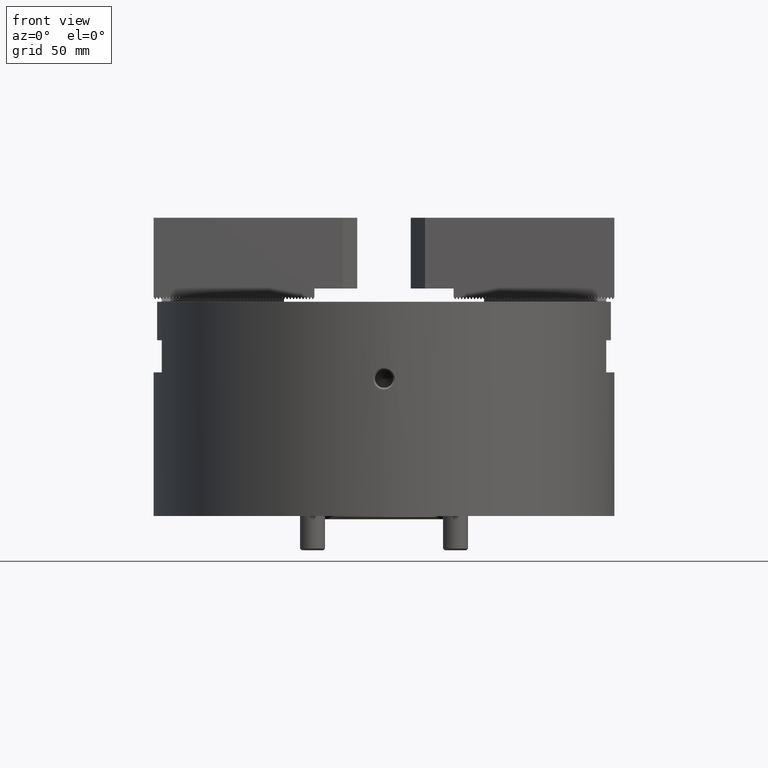
[diagram: clean part render]
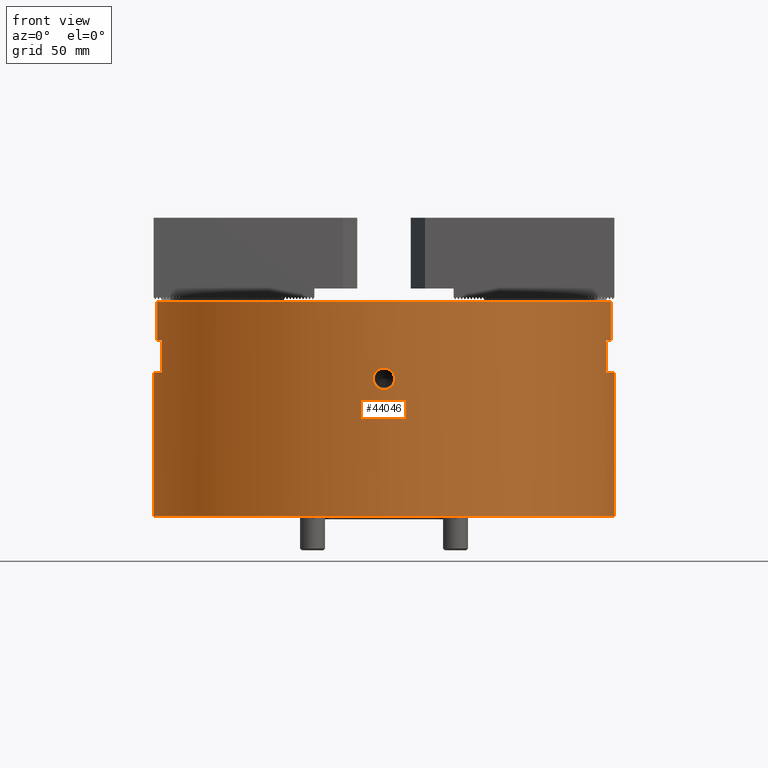
[diagram: same view with one face highlighted and labeled with its STEP entity id]
A machine part, front view. The second image highlights one B-rep face of the part: STEP entity #44046.
In plain terms, the highlighted cylindrical surface (bore or boss wall) has radius 107.5 mm, axis along (-0, 0, 1).
Its self-contained STEP definition (entity closure, byte-faithful):
#662=B_SPLINE_CURVE_WITH_KNOTS('',3,(#64453,#64454,#64455,#64456,#64457,
#64458,#64459,#64460,#64461,#64462,#64463,#64464,#64465,#64466,#64467,#64468,
#64469,#64470,#64471,#64472,#64473,#64474,#64475,#64476,#64477,#64478,#64479,
#64480,#64481,#64482,#64483,#64484,#64485,#64486,#64487),.UNSPECIFIED.,
 .T.,.F.,(1,1,1,1,1,1,1,1,1,1,1,1,1,1,1,1,1,1,1,1,1,1,1,1,1,1,1,1,1,1,1,
1,1,1,1,1,1,1,1),(-0.0953947368421053,-0.0641447368421053,-0.0328947368421053,
0.,0.0296875,0.060859375,0.09210546875,0.1233552734375,0.154605263671875,
0.185855263183594,0.21710526315918,0.248355263157959,0.279605263157898,
0.310855263157895,0.342105263157895,0.373355263157895,0.404605263157895,
0.435855263157895,0.467105263157895,0.498355263157895,0.529605263157895,
0.560855263157895,0.592105263157895,0.623355263157895,0.654605263157895,
0.685855263157895,0.717105263157895,0.748355263157895,0.779605263157895,
0.810855263157895,0.842105263157895,0.873355263157895,0.904605263157895,
0.935855263157895,0.967105263157895,1.,1.0296875,1.060859375,1.09210546875),
 .UNSPECIFIED.);
#664=B_SPLINE_CURVE_WITH_KNOTS('',3,(#64607,#64608,#64609,#64610,#64611,
#64612,#64613,#64614,#64615,#64616,#64617,#64618,#64619,#64620,#64621,#64622,
#64623,#64624,#64625,#64626,#64627,#64628,#64629,#64630,#64631,#64632,#64633,
#64634,#64635,#64636,#64637,#64638,#64639,#64640,#64641),.UNSPECIFIED.,
 .T.,.F.,(1,1,1,1,1,1,1,1,1,1,1,1,1,1,1,1,1,1,1,1,1,1,1,1,1,1,1,1,1,1,1,
1,1,1,1,1,1,1,1),(-0.0953947368421053,-0.0641447368421053,-0.0328947368421053,
0.,0.0296875,0.060859375,0.09210546875,0.1233552734375,0.154605263671875,
0.185855263183594,0.21710526315918,0.248355263157959,0.279605263157898,
0.310855263157895,0.342105263157895,0.373355263157895,0.404605263157895,
0.435855263157895,0.467105263157895,0.498355263157895,0.529605263157895,
0.560855263157895,0.592105263157895,0.623355263157895,0.654605263157895,
0.685855263157895,0.717105263157895,0.748355263157895,0.779605263157895,
0.810855263157895,0.842105263157895,0.873355263157895,0.904605263157895,
0.935855263157895,0.967105263157895,1.,1.0296875,1.060859375,1.09210546875),
 .UNSPECIFIED.);
#696=CYLINDRICAL_SURFACE('',#46227,107.5);
#1143=CIRCLE('',#45985,107.5);
#1144=CIRCLE('',#45987,107.5);
#1147=CIRCLE('',#45992,107.5);
#1149=CIRCLE('',#45998,107.5);
#1200=CIRCLE('',#46199,107.5);
#1201=CIRCLE('',#46202,107.5);
#1204=CIRCLE('',#46208,107.5);
#1214=CIRCLE('',#46226,107.5);
#1215=CIRCLE('',#46228,107.5);
#2913=ORIENTED_EDGE('',*,*,#15428,.F.);
#2914=ORIENTED_EDGE('',*,*,#15466,.F.);
#2915=ORIENTED_EDGE('',*,*,#16034,.F.);
#2916=ORIENTED_EDGE('',*,*,#15492,.F.);
#2917=ORIENTED_EDGE('',*,*,#15487,.F.);
#2918=ORIENTED_EDGE('',*,*,#15477,.F.);
#2919=ORIENTED_EDGE('',*,*,#15422,.F.);
#2920=ORIENTED_EDGE('',*,*,#16053,.F.);
#2921=ORIENTED_EDGE('',*,*,#16031,.F.);
#2922=ORIENTED_EDGE('',*,*,#16022,.F.);
#2923=ORIENTED_EDGE('',*,*,#16019,.F.);
#2924=ORIENTED_EDGE('',*,*,#16016,.F.);
#2925=ORIENTED_EDGE('',*,*,#15434,.F.);
#2926=ORIENTED_EDGE('',*,*,#15460,.F.);
#2927=ORIENTED_EDGE('',*,*,#15452,.F.);
#2928=ORIENTED_EDGE('',*,*,#16051,.F.);
#2929=ORIENTED_EDGE('',*,*,#16036,.T.);
#2930=ORIENTED_EDGE('',*,*,#15984,.T.);
#2931=ORIENTED_EDGE('',*,*,#15981,.T.);
#15422=EDGE_CURVE('',#22182,#22183,#26455,.T.);
#15428=EDGE_CURVE('',#22188,#22189,#26461,.T.);
#15434=EDGE_CURVE('',#22194,#22192,#26467,.T.);
#15452=EDGE_CURVE('',#22210,#22211,#26484,.T.);
#15460=EDGE_CURVE('',#22211,#22194,#1143,.T.);
#15466=EDGE_CURVE('',#22221,#22188,#1144,.T.);
#15477=EDGE_CURVE('',#22183,#22230,#1147,.T.);
#15487=EDGE_CURVE('',#22230,#22236,#26513,.T.);
#15492=EDGE_CURVE('',#22236,#22240,#1149,.T.);
#15981=EDGE_CURVE('',#22582,#22582,#662,.T.);
#15984=EDGE_CURVE('',#22586,#22586,#664,.T.);
#16016=EDGE_CURVE('',#22192,#22622,#1200,.T.);
#16019=EDGE_CURVE('',#22622,#22624,#26865,.T.);
#16022=EDGE_CURVE('',#22624,#22626,#1201,.T.);
#16031=EDGE_CURVE('',#22626,#22633,#26875,.T.);
#16034=EDGE_CURVE('',#22240,#22221,#26878,.T.);
#16036=EDGE_CURVE('',#22635,#22635,#1204,.T.);
#16051=EDGE_CURVE('',#22189,#22210,#1214,.T.);
#16053=EDGE_CURVE('',#22633,#22182,#1215,.T.);
#22182=VERTEX_POINT('',#61032);
#22183=VERTEX_POINT('',#61034);
#22188=VERTEX_POINT('',#61045);
#22189=VERTEX_POINT('',#61047);
#22192=VERTEX_POINT('',#61054);
#22194=VERTEX_POINT('',#61058);
#22210=VERTEX_POINT('',#61096);
#22211=VERTEX_POINT('',#61098);
#22221=VERTEX_POINT('',#61123);
#22230=VERTEX_POINT('',#61146);
#22236=VERTEX_POINT('',#61162);
#22240=VERTEX_POINT('',#61175);
#22582=VERTEX_POINT('',#64488);
#22586=VERTEX_POINT('',#64642);
#22622=VERTEX_POINT('',#64806);
#22624=VERTEX_POINT('',#64812);
#22626=VERTEX_POINT('',#64818);
#22633=VERTEX_POINT('',#64835);
#22635=VERTEX_POINT('',#64844);
#26455=LINE('',#61033,#31988);
#26461=LINE('',#61046,#31994);
#26467=LINE('',#61059,#32000);
#26484=LINE('',#61097,#32017);
#26513=LINE('',#61165,#32046);
#26865=LINE('',#64811,#32398);
#26875=LINE('',#64834,#32408);
#26878=LINE('',#64839,#32411);
#31988=VECTOR('',#49154,1000.);
#31994=VECTOR('',#49162,1000.);
#32000=VECTOR('',#49170,1000.);
#32017=VECTOR('',#49197,1000.);
#32046=VECTOR('',#49250,1000.);
#32398=VECTOR('',#50014,1000.);
#32408=VECTOR('',#50032,1000.);
#32411=VECTOR('',#50037,1000.);
#37785=EDGE_LOOP('',(#2913,#2914,#2915,#2916,#2917,#2918,#2919,#2920,#2921,
#2922,#2923,#2924,#2925,#2926,#2927,#2928));
#37786=EDGE_LOOP('',(#2929));
#37787=EDGE_LOOP('',(#2930));
#37788=EDGE_LOOP('',(#2931));
#40184=FACE_BOUND('',#37785,.T.);
#40185=FACE_BOUND('',#37786,.T.);
#40186=FACE_BOUND('',#37787,.T.);
#40187=FACE_BOUND('',#37788,.T.);
#44046=ADVANCED_FACE('',(#40184,#40185,#40186,#40187),#696,.T.);
#45985=AXIS2_PLACEMENT_3D('',#61111,#49208,#49209);
#45987=AXIS2_PLACEMENT_3D('',#61124,#49217,#49218);
#45992=AXIS2_PLACEMENT_3D('',#61145,#49235,#49236);
#45998=AXIS2_PLACEMENT_3D('',#61174,#49260,#49261);
#46199=AXIS2_PLACEMENT_3D('',#64805,#50008,#50009);
#46202=AXIS2_PLACEMENT_3D('',#64817,#50019,#50020);
#46208=AXIS2_PLACEMENT_3D('',#64843,#50042,#50043);
#46226=AXIS2_PLACEMENT_3D('',#64874,#50083,#50084);
#46227=AXIS2_PLACEMENT_3D('',#64876,#50086,#50087);
#46228=AXIS2_PLACEMENT_3D('',#64877,#50088,#50089);
#49154=DIRECTION('',(2.34290668463255E-15,0.,-1.));
#49162=DIRECTION('',(-2.34290668463255E-15,0.,1.));
#49170=DIRECTION('',(2.34290668463255E-15,0.,-1.));
#49197=DIRECTION('',(2.34290668463255E-15,0.,-1.));
#49208=DIRECTION('',(2.34290668463255E-15,0.,-1.));
#49209=DIRECTION('',(-1.,0.,-2.35599653481501E-15));
#49217=DIRECTION('',(2.34290668463255E-15,-8.75811540203011E-47,-1.));
#49218=DIRECTION('',(-1.,0.,-2.35599653481501E-15));
#49235=DIRECTION('',(2.34290668463255E-15,-8.75811540203011E-47,-1.));
#49236=DIRECTION('',(-1.,0.,-2.35599653481501E-15));
#49250=DIRECTION('',(2.34290668463255E-15,0.,-1.));
#49260=DIRECTION('',(-2.34290668463255E-15,8.75811540203011E-47,1.));
#49261=DIRECTION('',(1.,0.,2.32372260968056E-15));
#50008=DIRECTION('',(-2.34290668463255E-15,0.,1.));
#50009=DIRECTION('',(1.,0.,2.32372260968056E-15));
#50014=DIRECTION('',(-2.34290668463255E-15,0.,1.));
#50019=DIRECTION('',(2.34290668463255E-15,0.,-1.));
#50020=DIRECTION('',(-1.,0.,-2.35599653481501E-15));
#50032=DIRECTION('',(-2.34290668463255E-15,0.,1.));
#50037=DIRECTION('',(-2.34290668463255E-15,0.,1.));
#50042=DIRECTION('',(-2.34290668463255E-15,0.,1.));
#50043=DIRECTION('',(1.,0.,2.32372260968056E-15));
#50083=DIRECTION('',(-2.34290668463255E-15,0.,1.));
#50084=DIRECTION('',(1.,0.,2.34290668463255E-15));
#50086=DIRECTION('',(-2.34290668463255E-15,0.,1.));
#50087=DIRECTION('',(1.,0.,2.34290668463255E-15));
#50088=DIRECTION('',(-2.34290668463255E-15,0.,1.));
#50089=DIRECTION('',(1.,0.,2.34290668463255E-15));
#61032=CARTESIAN_POINT('',(105.896175568337,-18.5,2.44171941340441E-13));
#61033=CARTESIAN_POINT('',(105.896175568337,-18.5,2.48104857616078E-13));
#61034=CARTESIAN_POINT('',(105.896175568337,-18.5,-17.9999999999998));
#61045=CARTESIAN_POINT('',(105.896175568337,18.5,-17.9999999999998));
#61046=CARTESIAN_POINT('',(105.896175568337,18.5,2.48104857616078E-13));
#61047=CARTESIAN_POINT('',(105.896175568337,18.5,2.44171941340441E-13));
#61054=CARTESIAN_POINT('',(-103.653268158799,28.5,-33.0000000000002));
#61058=CARTESIAN_POINT('',(-103.653268158799,28.5,-18.0000000000002));
#61059=CARTESIAN_POINT('',(-103.6532681588,28.5,-2.42849934853262E-13));
#61096=CARTESIAN_POINT('',(-105.896175568337,18.5,-2.52037773891715E-13));
#61097=CARTESIAN_POINT('',(-105.896175568337,18.5,-2.48104857616078E-13));
#61098=CARTESIAN_POINT('',(-105.896175568337,18.5,-18.0000000000003));
#61111=CARTESIAN_POINT('',(4.21723203233859E-14,0.,-18.));
#61123=CARTESIAN_POINT('',(103.6532681588,28.5,-17.9999999999998));
#61124=CARTESIAN_POINT('',(4.21723203233859E-14,0.,-18.));
#61145=CARTESIAN_POINT('',(4.21723203233859E-14,0.,-18.));
#61146=CARTESIAN_POINT('',(103.6532681588,-28.5,-17.9999999999998));
#61162=CARTESIAN_POINT('',(103.6532681588,-28.5,-32.9999999999998));
#61165=CARTESIAN_POINT('',(103.6532681588,-28.5,2.42849934853262E-13));
#61174=CARTESIAN_POINT('',(7.73159205928742E-14,0.,-33.));
#61175=CARTESIAN_POINT('',(103.6532681588,28.5,-32.9999999999998));
#64453=CARTESIAN_POINT('',(-1.01634277237542,-107.496720667195,-31.1005835140112));
#64454=CARTESIAN_POINT('',(-0.0336717107177367,-107.50151566005,-30.9957456714662));
#64455=CARTESIAN_POINT('',(0.948633834193685,-107.497199501233,-31.0912173441836));
#64456=CARTESIAN_POINT('',(1.87839426649377,-107.484885627866,-31.3638972407955));
#64457=CARTESIAN_POINT('',(2.75334558886872,-107.465801821886,-31.8139452905491));
#64458=CARTESIAN_POINT('',(3.52611731841328,-107.442924401918,-32.4251457589044));
#64459=CARTESIAN_POINT('',(4.1563955818674,-107.42008648512,-33.1785464324634));
#64460=CARTESIAN_POINT('',(4.62810201510214,-107.400554999375,-34.0405882760622));
#64461=CARTESIAN_POINT('',(4.92657707986584,-107.387109155364,-34.9750796430669));
#64462=CARTESIAN_POINT('',(5.03843668037122,-107.381851858077,-35.949850089693));
#64463=CARTESIAN_POINT('',(4.94873400743694,-107.386077612829,-36.9239608622996));
#64464=CARTESIAN_POINT('',(4.66936823179907,-107.398746627795,-37.8639547346556));
#64465=CARTESIAN_POINT('',(4.21559167242349,-107.417752021958,-38.7335809594474));
#64466=CARTESIAN_POINT('',(3.60077785734546,-107.440413397663,-39.5006989251536));
#64467=CARTESIAN_POINT('',(2.84251159772681,-107.463453855811,-40.1264887951673));
#64468=CARTESIAN_POINT('',(1.97274365997529,-107.48318665403,-40.595900509494));
#64469=CARTESIAN_POINT('',(1.02951846918906,-107.496528375484,-40.8931942256389));
#64470=CARTESIAN_POINT('',(0.0457741783201097,-107.50150712303,-41.0041262083098));
#64471=CARTESIAN_POINT('',(-0.935734178297698,-107.497383703639,-40.9141404194648));
#64472=CARTESIAN_POINT('',(-1.88149379859525,-107.484832489911,-40.6362287956316));
#64473=CARTESIAN_POINT('',(-2.75596715523072,-107.465731465681,-40.1849777247605));
#64474=CARTESIAN_POINT('',(-3.52787481291567,-107.442865582035,-39.5729564388879));
#64475=CARTESIAN_POINT('',(-4.15784693475982,-107.420030007234,-38.8194294714164));
#64476=CARTESIAN_POINT('',(-4.62936030571065,-107.400500521861,-37.9579557391372));
#64477=CARTESIAN_POINT('',(-4.92754731497938,-107.387064267155,-37.0239992710432));
#64478=CARTESIAN_POINT('',(-5.03857945409646,-107.381845078135,-36.0490466211571));
#64479=CARTESIAN_POINT('',(-4.94755951341201,-107.386132523495,-35.0740896617703));
#64480=CARTESIAN_POINT('',(-4.66701681534013,-107.398849972444,-34.133391503361));
#64481=CARTESIAN_POINT('',(-4.21235141281635,-107.417880707189,-33.263161022496));
#64482=CARTESIAN_POINT('',(-3.59679784213545,-107.44054732795,-32.4955086747764));
#64483=CARTESIAN_POINT('',(-2.83942035948825,-107.463529855735,-31.869875758016));
#64484=CARTESIAN_POINT('',(-1.97287957992148,-107.483174464225,-31.4016990765452));
#64485=CARTESIAN_POINT('',(-1.01634277237542,-107.496720667195,-31.1005835140112));
#64486=CARTESIAN_POINT('',(-0.0336717107177367,-107.50151566005,-30.9957456714662));
#64487=CARTESIAN_POINT('',(0.948633834193685,-107.497199501233,-31.0912173441836));
#64488=CARTESIAN_POINT('',(5.29508269558464E-14,-107.5,-31.0290875300051));
#64607=CARTESIAN_POINT('',(1.01634277233692,107.496720667195,-31.1005835140058));
#64608=CARTESIAN_POINT('',(0.0336717107368755,107.50151566005,-30.9957456714696));
#64609=CARTESIAN_POINT('',(-0.9486338342307,107.497199501233,-31.0912173441759));
#64610=CARTESIAN_POINT('',(-1.87839426646875,107.484885627866,-31.3638972407686));
#64611=CARTESIAN_POINT('',(-2.75334558883157,107.465801821887,-31.8139452904807));
#64612=CARTESIAN_POINT('',(-3.52611731845194,107.442924401917,-32.4251457589195));
#64613=CARTESIAN_POINT('',(-4.15639558194545,107.420086485116,-33.1785464325869));
#64614=CARTESIAN_POINT('',(-4.6281020150704,107.400554999376,-34.0405882760821));
#64615=CARTESIAN_POINT('',(-4.92657707984947,107.387109155364,-34.9750796429791));
#64616=CARTESIAN_POINT('',(-5.03843668037126,107.381851858077,-35.9498500897164));
#64617=CARTESIAN_POINT('',(-4.94873400745165,107.386077612828,-36.9239608622924));
#64618=CARTESIAN_POINT('',(-4.66936823185295,107.398746627793,-37.8639547346653));
#64619=CARTESIAN_POINT('',(-4.21559167244493,107.417752021957,-38.7335809594585));
#64620=CARTESIAN_POINT('',(-3.60077785740627,107.440413397661,-39.5006989250571));
#64621=CARTESIAN_POINT('',(-2.84251159772131,107.463453855811,-40.1264887951907));
#64622=CARTESIAN_POINT('',(-1.97274365991339,107.483186654031,-40.5959005095111));
#64623=CARTESIAN_POINT('',(-1.02951846917635,107.496528375484,-40.8931942256541));
#64624=CARTESIAN_POINT('',(-0.0457741782921642,107.50150712303,-41.0041262083027));
#64625=CARTESIAN_POINT('',(0.935734178274958,107.497383703639,-40.9141404194781));
#64626=CARTESIAN_POINT('',(1.88149379856725,107.484832489911,-40.6362287956659));
#64627=CARTESIAN_POINT('',(2.75596715517365,107.465731465683,-40.1849777248173));
#64628=CARTESIAN_POINT('',(3.52787481290956,107.442865582036,-39.5729564389027));
#64629=CARTESIAN_POINT('',(4.15784693481145,107.420030007232,-38.8194294713394));
#64630=CARTESIAN_POINT('',(4.62936030572653,107.40050052186,-37.9579557390585));
#64631=CARTESIAN_POINT('',(4.92754731496655,107.387064267155,-37.0239992710026));
#64632=CARTESIAN_POINT('',(5.03857945409694,107.381845078135,-36.04904662116));
#64633=CARTESIAN_POINT('',(4.94755951342414,107.386132523494,-35.0740896617805));
#64634=CARTESIAN_POINT('',(4.66701681531809,107.398849972445,-34.1333915033923));
#64635=CARTESIAN_POINT('',(4.21235141278467,107.417880707191,-33.2631610224833));
#64636=CARTESIAN_POINT('',(3.59679784208517,107.440547327952,-32.4955086747272));
#64637=CARTESIAN_POINT('',(2.83942035956474,107.463529855733,-31.8698757580793));
#64638=CARTESIAN_POINT('',(1.97287958001264,107.483174464224,-31.4016990765756));
#64639=CARTESIAN_POINT('',(1.01634277233692,107.496720667195,-31.1005835140058));
#64640=CARTESIAN_POINT('',(0.0336717107368755,107.50151566005,-30.9957456714696));
#64641=CARTESIAN_POINT('',(-0.9486338342307,107.497199501233,-31.0912173441759));
#64642=CARTESIAN_POINT('',(7.92807331375145E-14,107.5,-31.0290875300051));
#64805=CARTESIAN_POINT('',(7.73159205928742E-14,0.,-33.));
#64806=CARTESIAN_POINT('',(-103.653268158799,-28.5,-33.0000000000002));
#64811=CARTESIAN_POINT('',(-103.6532681588,-28.5,-2.42849934853262E-13));
#64812=CARTESIAN_POINT('',(-103.653268158799,-28.5,-18.0000000000002));
#64817=CARTESIAN_POINT('',(4.21723203233859E-14,0.,-18.));
#64818=CARTESIAN_POINT('',(-105.896175568337,-18.5,-18.0000000000003));
#64834=CARTESIAN_POINT('',(-105.896175568337,-18.5,-2.48104857616078E-13));
#64835=CARTESIAN_POINT('',(-105.896175568337,-18.5,-2.52037773891715E-13));
#64839=CARTESIAN_POINT('',(103.6532681588,28.5,2.42849934853262E-13));
#64843=CARTESIAN_POINT('',(2.34290668463255E-13,0.,-100.));
#64844=CARTESIAN_POINT('',(107.5,0.,-99.9999999999998));
#64874=CARTESIAN_POINT('',(9.21445583228987E-30,0.,-3.93291627563691E-15));
#64876=CARTESIAN_POINT('',(0.,0.,0.));
#64877=CARTESIAN_POINT('',(9.21445583228987E-30,0.,-3.93291627563691E-15));